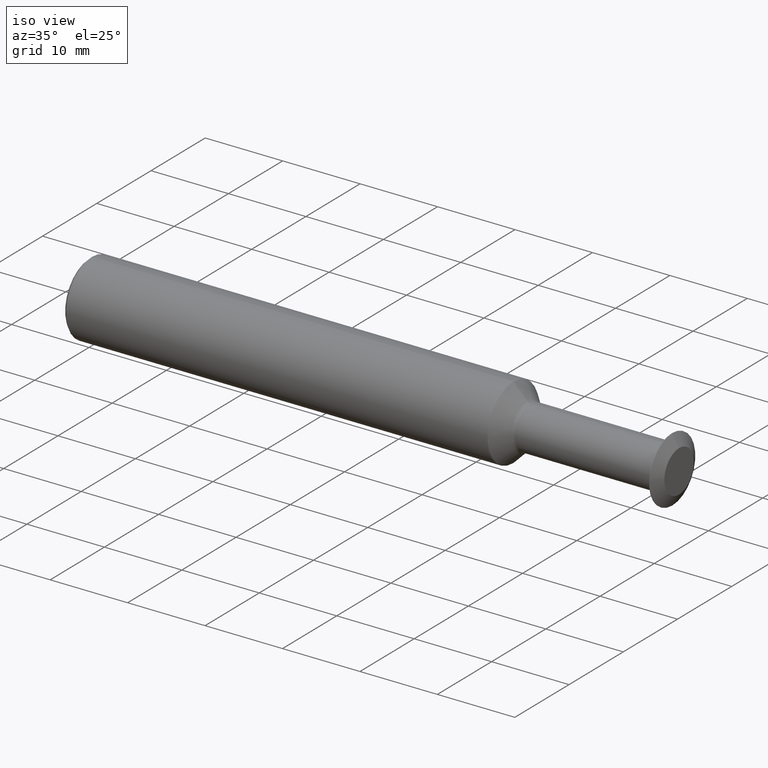
[diagram: clean part render]
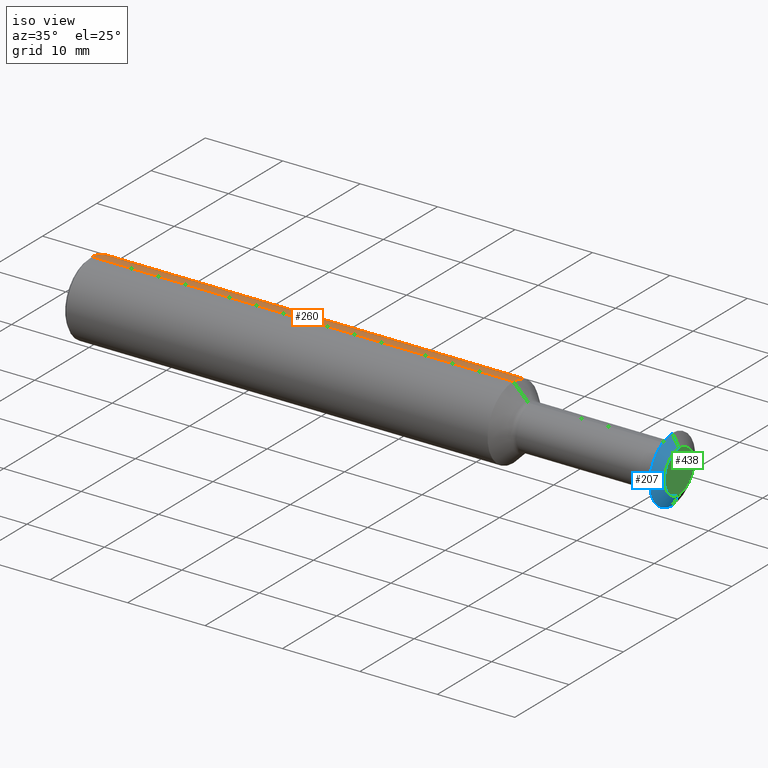
[diagram: same view with three faces highlighted in distinct colors, each labeled with its STEP entity id]
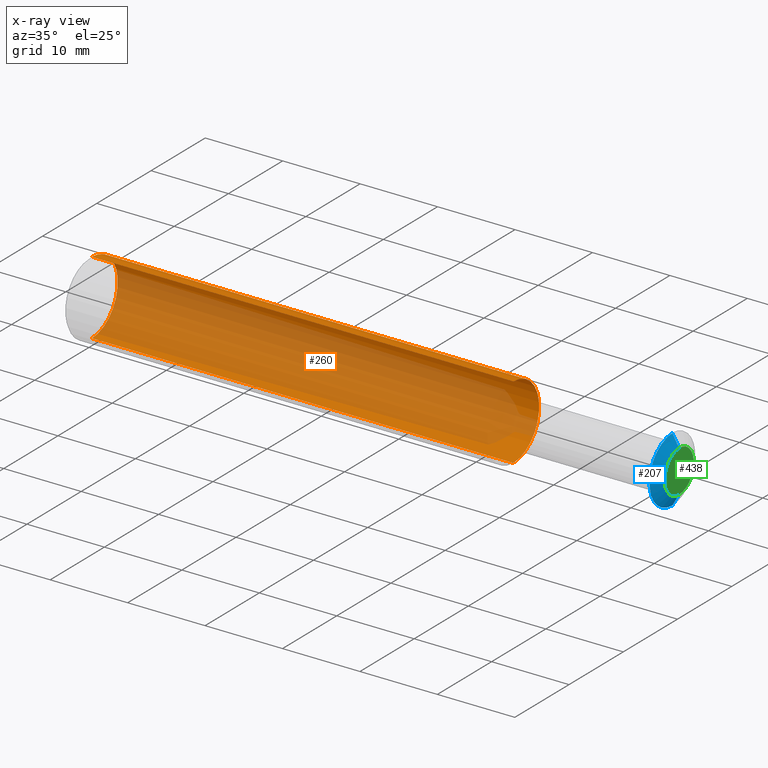
[diagram: x-ray of the same camera — body ghosted, the three highlighted faces saturated]
A machine part, iso view with three faces highlighted in distinct colors.
The next image is the same camera in x-ray (body ghosted, the three faces saturated) — at least one of them is partly hidden behind the body in this view.
Their STEP definitions:

[orange] entity #260 — the highlighted cylindrical surface (partial cylindrical patch) has radius 4.7587 mm, axis along (-1, -0, -0).
#5 = DIRECTION ( 'NONE',  ( 0.0000000000000000000, 0.0000000000000000000, 1.000000000000000000 ) ) ;
#15 = CARTESIAN_POINT ( 'NONE',  ( 0.01499999999999953280, 0.0000000000000000000, 0.1873499999999999888 ) ) ;
#23 = DIRECTION ( 'NONE',  ( -1.000000000000000000, -0.0000000000000000000, -0.0000000000000000000 ) ) ;
#31 = DIRECTION ( 'NONE',  ( -1.000000000000000000, -0.0000000000000000000, -0.0000000000000000000 ) ) ;
#36 = CYLINDRICAL_SURFACE ( 'NONE', #366, 0.1873499999999999888 ) ;
#37 = ORIENTED_EDGE ( 'NONE', *, *, #364, .T. ) ;
#46 = VERTEX_POINT ( 'NONE', #334 ) ;
#51 = VECTOR ( 'NONE', #23, 39.37007874015748143 ) ;
#52 = CIRCLE ( 'NONE', #343, 0.1873499999999999888 ) ;
#54 = AXIS2_PLACEMENT_3D ( 'NONE', #423, #109, #353 ) ;
#109 = DIRECTION ( 'NONE',  ( 1.000000000000000000, 0.0000000000000000000, 0.0000000000000000000 ) ) ;
#118 = LINE ( 'NONE', #338, #51 ) ;
#132 = VERTEX_POINT ( 'NONE', #172 ) ;
#139 = VERTEX_POINT ( 'NONE', #217 ) ;
#156 = VERTEX_POINT ( 'NONE', #15 ) ;
#172 = CARTESIAN_POINT ( 'NONE',  ( 0.01499999999999953280, 2.294375778202566330E-17, -0.1873499999999999888 ) ) ;
#208 = LINE ( 'NONE', #268, #342 ) ;
#217 = CARTESIAN_POINT ( 'NONE',  ( 2.157541972616871639, 0.0000000000000000000, 0.1873499999999999888 ) ) ;
#253 = EDGE_CURVE ( 'NONE', #139, #156, #118, .T. ) ;
#260 = ADVANCED_FACE ( 'NONE', ( #446 ), #36, .T. ) ;
#268 = CARTESIAN_POINT ( 'NONE',  ( 0.0000000000000000000, 2.294375778202566330E-17, -0.1873499999999999888 ) ) ;
#272 = ORIENTED_EDGE ( 'NONE', *, *, #497, .T. ) ;
#275 = CARTESIAN_POINT ( 'NONE',  ( 0.0000000000000000000, 0.0000000000000000000, 0.0000000000000000000 ) ) ;
#300 = EDGE_LOOP ( 'NONE', ( #37, #272, #325, #397 ) ) ;
#307 = CARTESIAN_POINT ( 'NONE',  ( 2.157541972616871639, 0.0000000000000000000, 0.0000000000000000000 ) ) ;
#325 = ORIENTED_EDGE ( 'NONE', *, *, #476, .T. ) ;
#334 = CARTESIAN_POINT ( 'NONE',  ( 2.157541972616871639, 2.294375778202565714E-17, -0.1873499999999999888 ) ) ;
#338 = CARTESIAN_POINT ( 'NONE',  ( 0.0000000000000000000, 0.0000000000000000000, 0.1873499999999999888 ) ) ;
#342 = VECTOR ( 'NONE', #434, 39.37007874015748143 ) ;
#343 = AXIS2_PLACEMENT_3D ( 'NONE', #307, #31, #498 ) ;
#353 = DIRECTION ( 'NONE',  ( 0.0000000000000000000, 0.0000000000000000000, -1.000000000000000000 ) ) ;
#364 = EDGE_CURVE ( 'NONE', #139, #46, #52, .T. ) ;
#366 = AXIS2_PLACEMENT_3D ( 'NONE', #275, #382, #5 ) ;
#382 = DIRECTION ( 'NONE',  ( -1.000000000000000000, -0.0000000000000000000, -0.0000000000000000000 ) ) ;
#397 = ORIENTED_EDGE ( 'NONE', *, *, #253, .F. ) ;
#423 = CARTESIAN_POINT ( 'NONE',  ( 0.01499999999999953280, 0.0000000000000000000, 0.0000000000000000000 ) ) ;
#434 = DIRECTION ( 'NONE',  ( -1.000000000000000000, -0.0000000000000000000, -0.0000000000000000000 ) ) ;
#436 = CIRCLE ( 'NONE', #54, 0.1873499999999999888 ) ;
#446 = FACE_OUTER_BOUND ( 'NONE', #300, .T. ) ;
#476 = EDGE_CURVE ( 'NONE', #132, #156, #436, .T. ) ;
#497 = EDGE_CURVE ( 'NONE', #46, #132, #208, .T. ) ;
#498 = DIRECTION ( 'NONE',  ( 0.0000000000000000000, 0.0000000000000000000, 1.000000000000000000 ) ) ;

[blue] entity #207 — the highlighted conical surface has half-angle 60.15 deg.
#34 = ORIENTED_EDGE ( 'NONE', *, *, #473, .F. ) ;
#55 = CARTESIAN_POINT ( 'NONE',  ( 3.000000000000000444, 0.0000000000000000000, 0.0000000000000000000 ) ) ;
#58 = VERTEX_POINT ( 'NONE', #439 ) ;
#66 = CARTESIAN_POINT ( 'NONE',  ( 3.000000000000000444, 1.310372075087661178E-17, -0.1069999999999994428 ) ) ;
#72 = CARTESIAN_POINT ( 'NONE',  ( 2.966141972616872735, 2.032913686584599974E-17, -0.1659999999999994813 ) ) ;
#75 = CIRCLE ( 'NONE', #203, 0.1069999999999994428 ) ;
#80 = FACE_OUTER_BOUND ( 'NONE', #105, .T. ) ;
#88 = EDGE_CURVE ( 'NONE', #58, #341, #75, .T. ) ;
#93 = DIRECTION ( 'NONE',  ( 0.0000000000000000000, 0.0000000000000000000, 1.000000000000000000 ) ) ;
#100 = CIRCLE ( 'NONE', #279, 0.1659999999999994813 ) ;
#104 = CARTESIAN_POINT ( 'NONE',  ( 2.966141972616872735, 0.0000000000000000000, 0.0000000000000000000 ) ) ;
#105 = EDGE_LOOP ( 'NONE', ( #390, #485, #251, #34 ) ) ;
#115 = DIRECTION ( 'NONE',  ( -0.4977310399126227969, 1.062174661273168978E-16, -0.8673314314075668552 ) ) ;
#154 = EDGE_CURVE ( 'NONE', #341, #354, #474, .T. ) ;
#157 = DIRECTION ( 'NONE',  ( 0.0000000000000000000, 0.0000000000000000000, 1.000000000000000000 ) ) ;
#203 = AXIS2_PLACEMENT_3D ( 'NONE', #55, #296, #93 ) ;
#207 = ADVANCED_FACE ( 'NONE', ( #80 ), #281, .T. ) ;
#237 = DIRECTION ( 'NONE',  ( -1.000000000000000000, -0.0000000000000000000, -0.0000000000000000000 ) ) ;
#251 = ORIENTED_EDGE ( 'NONE', *, *, #154, .T. ) ;
#259 = CARTESIAN_POINT ( 'NONE',  ( 3.000000000000000444, 0.0000000000000000000, 0.1069999999999994428 ) ) ;
#262 = AXIS2_PLACEMENT_3D ( 'NONE', #336, #435, #157 ) ;
#267 = DIRECTION ( 'NONE',  ( -0.4977310399126227969, 0.0000000000000000000, 0.8673314314075668552 ) ) ;
#279 = AXIS2_PLACEMENT_3D ( 'NONE', #104, #237, #375 ) ;
#281 = CONICAL_SURFACE ( 'NONE', #262, 0.1069999999999994428, 1.049815545074576972 ) ;
#291 = LINE ( 'NONE', #66, #393 ) ;
#296 = DIRECTION ( 'NONE',  ( -1.000000000000000000, -0.0000000000000000000, -0.0000000000000000000 ) ) ;
#297 = CARTESIAN_POINT ( 'NONE',  ( 3.000000000000000444, 0.0000000000000000000, 0.1069999999999994428 ) ) ;
#319 = VERTEX_POINT ( 'NONE', #72 ) ;
#336 = CARTESIAN_POINT ( 'NONE',  ( 3.000000000000000444, 0.0000000000000000000, 0.0000000000000000000 ) ) ;
#341 = VERTEX_POINT ( 'NONE', #297 ) ;
#346 = VECTOR ( 'NONE', #267, 39.37007874015748143 ) ;
#354 = VERTEX_POINT ( 'NONE', #425 ) ;
#375 = DIRECTION ( 'NONE',  ( 0.0000000000000000000, 0.0000000000000000000, 1.000000000000000000 ) ) ;
#390 = ORIENTED_EDGE ( 'NONE', *, *, #391, .F. ) ;
#391 = EDGE_CURVE ( 'NONE', #58, #319, #291, .T. ) ;
#393 = VECTOR ( 'NONE', #115, 39.37007874015748143 ) ;
#425 = CARTESIAN_POINT ( 'NONE',  ( 2.966141972616872735, 0.0000000000000000000, 0.1659999999999994813 ) ) ;
#435 = DIRECTION ( 'NONE',  ( -1.000000000000000000, -0.0000000000000000000, -0.0000000000000000000 ) ) ;
#439 = CARTESIAN_POINT ( 'NONE',  ( 3.000000000000000444, 1.671642880836130345E-17, -0.1069999999999994428 ) ) ;
#473 = EDGE_CURVE ( 'NONE', #319, #354, #100, .T. ) ;
#474 = LINE ( 'NONE', #259, #346 ) ;
#485 = ORIENTED_EDGE ( 'NONE', *, *, #88, .T. ) ;

[green] entity #438 — the highlighted planar face has unit normal (-1, 0, -0).
#6 = CARTESIAN_POINT ( 'NONE',  ( 3.000000000000000444, 0.0000000000000000000, 0.0000000000000000000 ) ) ;
#7 = PLANE ( 'NONE',  #227 ) ;
#21 = DIRECTION ( 'NONE',  ( 0.0000000000000000000, 0.0000000000000000000, 1.000000000000000000 ) ) ;
#55 = CARTESIAN_POINT ( 'NONE',  ( 3.000000000000000444, 0.0000000000000000000, 0.0000000000000000000 ) ) ;
#56 = CIRCLE ( 'NONE', #448, 0.1069999999999994428 ) ;
#58 = VERTEX_POINT ( 'NONE', #439 ) ;
#65 = DIRECTION ( 'NONE',  ( -0.0000000000000000000, 0.0000000000000000000, 1.000000000000000000 ) ) ;
#75 = CIRCLE ( 'NONE', #203, 0.1069999999999994428 ) ;
#88 = EDGE_CURVE ( 'NONE', #58, #341, #75, .T. ) ;
#93 = DIRECTION ( 'NONE',  ( 0.0000000000000000000, 0.0000000000000000000, 1.000000000000000000 ) ) ;
#203 = AXIS2_PLACEMENT_3D ( 'NONE', #55, #296, #93 ) ;
#227 = AXIS2_PLACEMENT_3D ( 'NONE', #453, #312, #65 ) ;
#238 = ORIENTED_EDGE ( 'NONE', *, *, #88, .F. ) ;
#296 = DIRECTION ( 'NONE',  ( -1.000000000000000000, -0.0000000000000000000, -0.0000000000000000000 ) ) ;
#297 = CARTESIAN_POINT ( 'NONE',  ( 3.000000000000000444, 0.0000000000000000000, 0.1069999999999994428 ) ) ;
#303 = EDGE_LOOP ( 'NONE', ( #392, #238 ) ) ;
#312 = DIRECTION ( 'NONE',  ( -1.000000000000000000, 0.0000000000000000000, -0.0000000000000000000 ) ) ;
#316 = FACE_OUTER_BOUND ( 'NONE', #303, .T. ) ;
#341 = VERTEX_POINT ( 'NONE', #297 ) ;
#392 = ORIENTED_EDGE ( 'NONE', *, *, #440, .F. ) ;
#438 = ADVANCED_FACE ( 'NONE', ( #316 ), #7, .F. ) ;
#439 = CARTESIAN_POINT ( 'NONE',  ( 3.000000000000000444, 1.671642880836130345E-17, -0.1069999999999994428 ) ) ;
#440 = EDGE_CURVE ( 'NONE', #341, #58, #56, .T. ) ;
#448 = AXIS2_PLACEMENT_3D ( 'NONE', #6, #466, #21 ) ;
#453 = CARTESIAN_POINT ( 'NONE',  ( 3.000000000000000444, 0.1069999999999994428, 0.0000000000000000000 ) ) ;
#466 = DIRECTION ( 'NONE',  ( -1.000000000000000000, -0.0000000000000000000, -0.0000000000000000000 ) ) ;